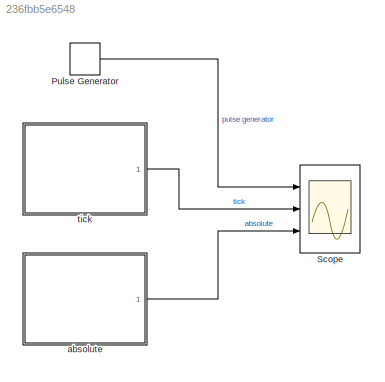
MODEL slx_236fbb5e6548
KIND model
CONFIG AbsTol = auto
CONFIG EnableMultiTasking = off
CONFIG FixedStep = 0.5
CONFIG MaxStep = auto
CONFIG MinStep = auto
CONFIG RelTol = 1e-3
CONFIG SampleTimeConstraint = Unconstrained
CONFIG Solver = FixedStepDiscrete
CONFIG SolverName = FixedStepDiscrete
CONFIG StartTime = 0.0
CONFIG StopTime = 10.0
BLOCK [DiscretePulseGenerator] Pulse Generator
  Period = 2.5
  Ports = [0, 1]
  PulseType = Time based
  PulseWidth = 60
BLOCK [Scope] Scope
  Floating = off
  NumInputPorts = 3
  Ports = [3]
  ScopeSpecificationString = Simulink.scopes.TimeScopeBlockCfg('CurrentConfiguration', extmgr.ConfigurationSet(extmgr.Configuration('Core','General UI',true),extmgr.Configuration('Core','Source UI',true),extmgr.Configuration('Sources','WiredSimulink',true),extmgr.Configuration('Visuals','Time Domain',true,'SerializedDisplays',{struct('MinYLimReal','-0.125','MaxYLimReal','1.125','YLabelReal','','MinYLimMag','0.00000','MaxYLimM...<+2743ch>
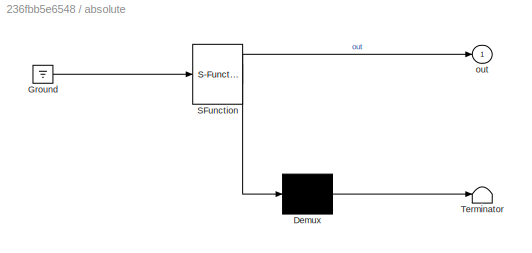
BLOCK [SubSystem] absolute
  ErrorFcn = Stateflow.Translate.translate
  PermitHierarchicalResolution = ExplicitOnly
  Ports = [0, 1]
  RequestExecContextInheritance = off
  SFBlockType = Chart
  TreatAsAtomicUnit = on
BLOCK [Demux] absolute/ Demux 
  Outputs = 1
  Ports = [1, 1]
BLOCK [Ground] absolute/ Ground 
BLOCK [S-Function] absolute/ SFunction 
  EnableBusSupport = on
  FunctionName = sf_sfun
  PortCounts = [1 2]
  Ports = [1, 2]
  SFcnIsStateOwnerBlock = off
  SFunctionDeploymentMode = off
  Tag = Stateflow S-Function Implicit_TickEvent_Temporal_Logic 1
BLOCK [Terminator] absolute/ Terminator 
BLOCK [Outport] absolute/out
  IconDisplay = Port number
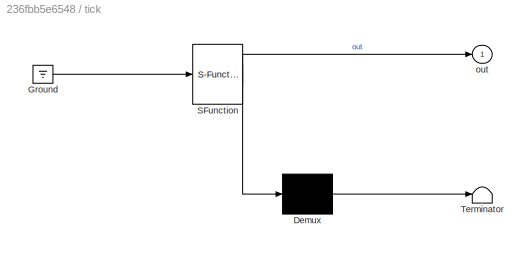
BLOCK [SubSystem] tick
  ErrorFcn = Stateflow.Translate.translate
  PermitHierarchicalResolution = ExplicitOnly
  Ports = [0, 1]
  RequestExecContextInheritance = off
  SFBlockType = Chart
  TreatAsAtomicUnit = on
BLOCK [Demux] tick/ Demux 
  Outputs = 1
  Ports = [1, 1]
BLOCK [Ground] tick/ Ground 
BLOCK [S-Function] tick/ SFunction 
  EnableBusSupport = on
  FunctionName = sf_sfun
  PortCounts = [1 2]
  Ports = [1, 2]
  SFcnIsStateOwnerBlock = off
  SFunctionDeploymentMode = off
  Tag = Stateflow S-Function Implicit_TickEvent_Temporal_Logic 3
BLOCK [Terminator] tick/ Terminator 
BLOCK [Outport] tick/out
  IconDisplay = Port number
LINE Pulse Generator:1 -> Scope:1
LINE absolute:1 -> Scope:3
LINE tick:1 -> Scope:2
CHART absolute states=2 transitions=3
  STATE_LABEL 'st1\nen:\nout=true;'
  STATE_LABEL 'st2\nen:\nout=false;'
CHART tick states=2 transitions=3
  STATE_LABEL 'st1\nen:\nout=true;'
  STATE_LABEL 'st2\nen:\nout=false;'
